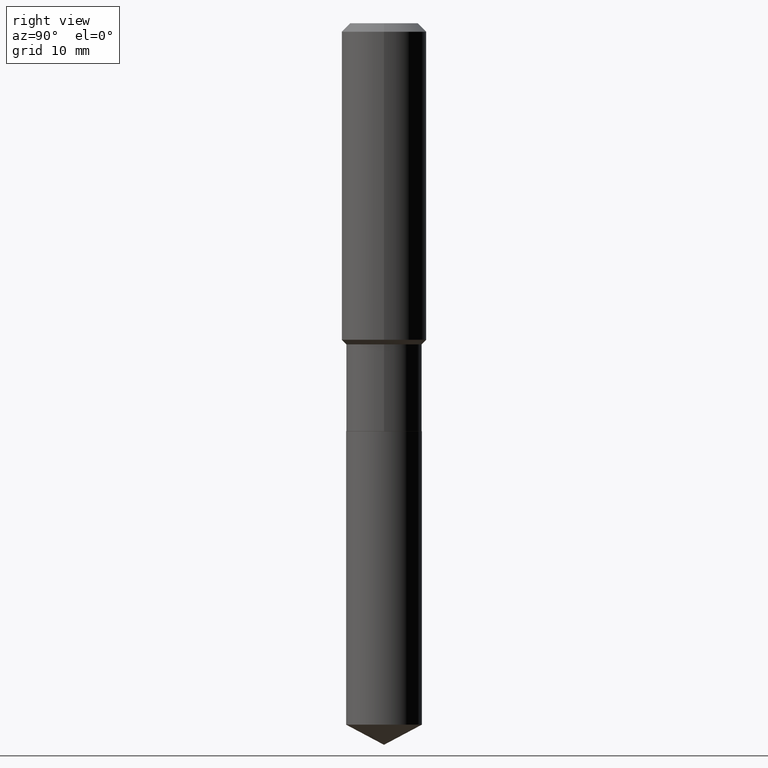
[diagram: clean part render]
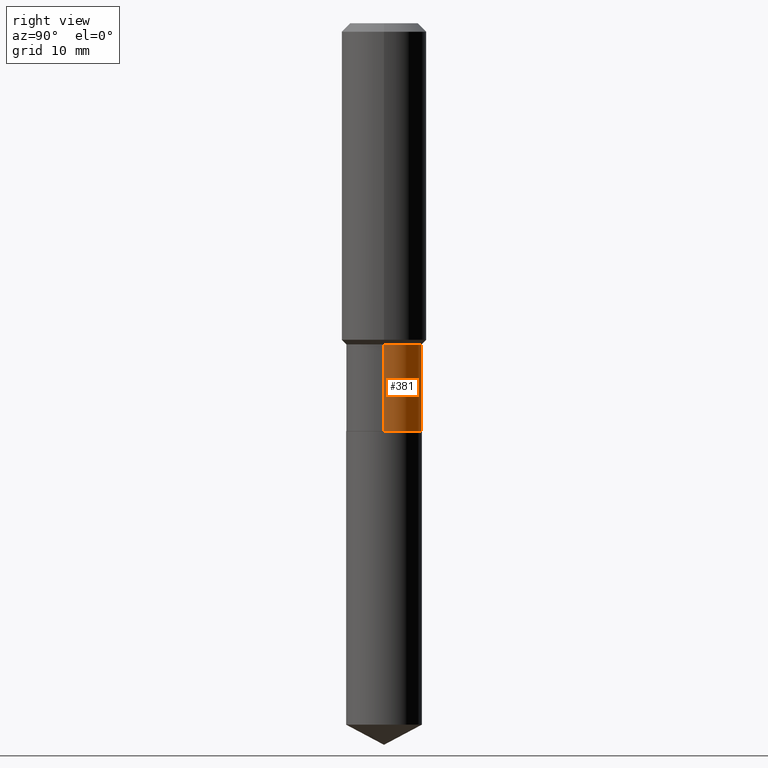
[diagram: same view with one face highlighted and labeled with its STEP entity id]
A machine part, right view. The second image highlights one B-rep face of the part: STEP entity #381.
In plain terms, the highlighted cylindrical surface (partial cylindrical patch) has radius 5.3505 mm, axis along (-0, 0, 1).
Its self-contained STEP definition (entity closure, byte-faithful):
#1 = EDGE_LOOP ( 'NONE', ( #350, #304, #214, #456 ) ) ;
#19 = AXIS2_PLACEMENT_3D ( 'NONE', #34, #102, #448 ) ;
#26 = CIRCLE ( 'NONE', #19, 0.2106500000000000039 ) ;
#34 = CARTESIAN_POINT ( 'NONE',  ( 5.553904205727063700E-29, -7.929503268646668266E-15, -2.271100000000000119 ) ) ;
#62 = CARTESIAN_POINT ( 'NONE',  ( -0.2106500000000000039, -5.587806511767975548E-15, -2.271100000000000119 ) ) ;
#66 = DIRECTION ( 'NONE',  ( -2.445468806185136597E-29, 3.491481338843145583E-15, 1.000000000000000000 ) ) ;
#68 = CARTESIAN_POINT ( 'NONE',  ( -0.2106499999999999484, -5.587806511767975548E-15, -1.787099999999999911 ) ) ;
#81 = VECTOR ( 'NONE', #359, 39.37007874015748143 ) ;
#97 = CIRCLE ( 'NONE', #257, 0.2106499999999999484 ) ;
#102 = DIRECTION ( 'NONE',  ( -2.445468806185136597E-29, 3.491481338843145583E-15, 1.000000000000000000 ) ) ;
#143 = EDGE_CURVE ( 'NONE', #356, #281, #471, .T. ) ;
#161 = VERTEX_POINT ( 'NONE', #406 ) ;
#162 = CARTESIAN_POINT ( 'NONE',  ( -0.2106499999999999762, 1.496758272878650872E-15, -1.036173676762195916E-29 ) ) ;
#167 = VECTOR ( 'NONE', #404, 39.37007874015748143 ) ;
#207 = VERTEX_POINT ( 'NONE', #215 ) ;
#214 = ORIENTED_EDGE ( 'NONE', *, *, #392, .F. ) ;
#215 = CARTESIAN_POINT ( 'NONE',  ( 0.2106499999999999484, -7.710587388701196730E-15, -1.787099999999999911 ) ) ;
#227 = DIRECTION ( 'NONE',  ( 1.000000000000000000, -6.982962677686266711E-15, 4.876176775795935793E-29 ) ) ;
#253 = DIRECTION ( 'NONE',  ( 1.000000000000000000, -6.982962677686267499E-15, 0.000000000000000000 ) ) ;
#257 = AXIS2_PLACEMENT_3D ( 'NONE', #419, #66, #253 ) ;
#281 = VERTEX_POINT ( 'NONE', #68 ) ;
#295 = LINE ( 'NONE', #433, #81 ) ;
#302 = CARTESIAN_POINT ( 'NONE',  ( 0.000000000000000000, 0.000000000000000000, 0.000000000000000000 ) ) ;
#304 = ORIENTED_EDGE ( 'NONE', *, *, #143, .T. ) ;
#342 = FACE_OUTER_BOUND ( 'NONE', #1, .T. ) ;
#350 = ORIENTED_EDGE ( 'NONE', *, *, #388, .T. ) ;
#356 = VERTEX_POINT ( 'NONE', #62 ) ;
#359 = DIRECTION ( 'NONE',  ( -2.445468806185136877E-29, 3.491481338843145188E-15, 1.000000000000000000 ) ) ;
#381 = ADVANCED_FACE ( 'NONE', ( #342 ), #421, .T. ) ;
#388 = EDGE_CURVE ( 'NONE', #161, #356, #26, .T. ) ;
#392 = EDGE_CURVE ( 'NONE', #207, #281, #97, .T. ) ;
#404 = DIRECTION ( 'NONE',  ( -2.445468806185136877E-29, 3.491481338843145188E-15, 1.000000000000000000 ) ) ;
#406 = CARTESIAN_POINT ( 'NONE',  ( 0.2106500000000000039, -9.400464356701280026E-15, -2.271100000000000119 ) ) ;
#419 = CARTESIAN_POINT ( 'NONE',  ( 4.370297303533457201E-29, -6.239626300646584969E-15, -1.787099999999999911 ) ) ;
#421 = CYLINDRICAL_SURFACE ( 'NONE', #466, 0.2106499999999999762 ) ;
#433 = CARTESIAN_POINT ( 'NONE',  ( 0.2106499999999999762, -1.470961088054611958E-15, 1.027166637821413806E-29 ) ) ;
#443 = EDGE_CURVE ( 'NONE', #161, #207, #295, .T. ) ;
#448 = DIRECTION ( 'NONE',  ( 1.000000000000000000, -6.982962677686270655E-15, 0.000000000000000000 ) ) ;
#454 = DIRECTION ( 'NONE',  ( -2.445468806185136597E-29, 3.491481338843145583E-15, 1.000000000000000000 ) ) ;
#456 = ORIENTED_EDGE ( 'NONE', *, *, #443, .F. ) ;
#466 = AXIS2_PLACEMENT_3D ( 'NONE', #302, #454, #227 ) ;
#471 = LINE ( 'NONE', #162, #167 ) ;